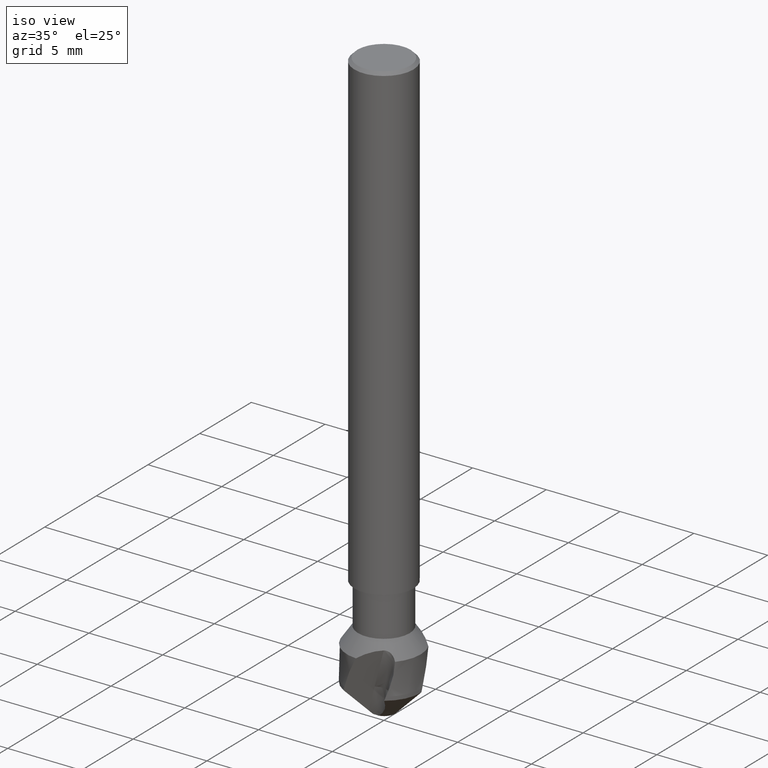
[diagram: clean part render]
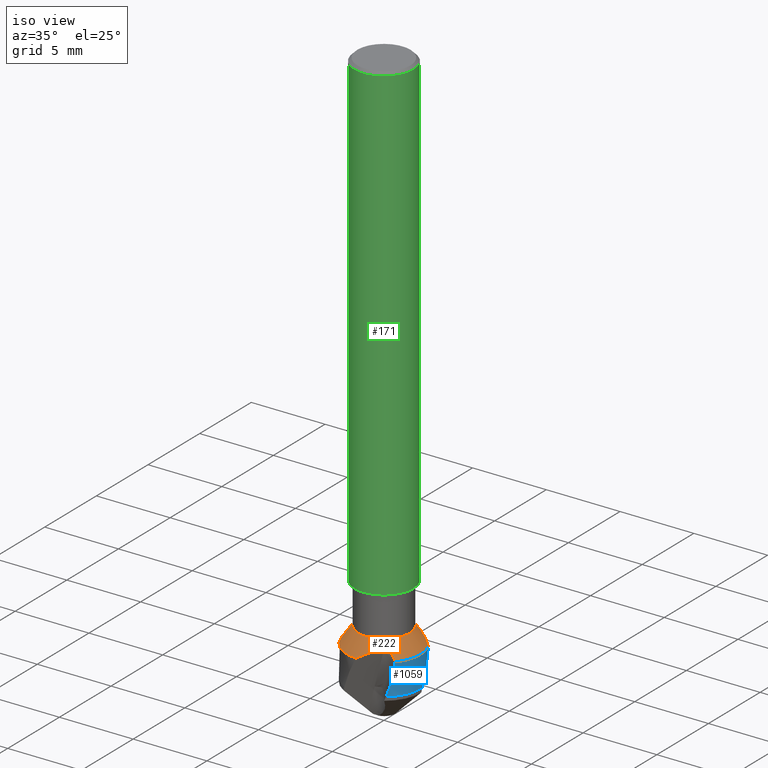
[diagram: same view with three faces highlighted in distinct colors, each labeled with its STEP entity id]
A machine part, iso view with three faces highlighted in distinct colors.
Their STEP definitions:

[orange] entity #222 — the highlighted face is a freeform B-spline surface patch.
#75 = VERTEX_POINT('', #76);
#76 = CARTESIAN_POINT('', (-1.75, 2.23804202544179E-15, -34.8));
#90 = EDGE_CURVE('', #75, #75, #91, .T.);
#91 = CIRCLE('', #92, 1.75);
#92 = AXIS2_PLACEMENT_3D('', #93, #94, #95);
#93 = CARTESIAN_POINT('', (1.30479101091582E-31, 2.13088543051639E-15, -34.8));
#94 = DIRECTION('', (3.74939945665464E-33, 6.12323399573677E-17, -1.));
#95 = DIRECTION('', (-1., 6.12323399573677E-17, 0.));
#222 = ADVANCED_FACE('', (#223), #512, .T.);
#223 = FACE_OUTER_BOUND('', #224, .T.);
#224 = EDGE_LOOP('', (#225, #260, #311, #320, #350, #401, #410, #437, #443, #444, #445, #454, #505));
#225 = ORIENTED_EDGE('', *, *, #226, .F.);
#226 = EDGE_CURVE('', #227, #229, #231, .T.);
#227 = VERTEX_POINT('', #228);
#228 = CARTESIAN_POINT('', (1.20760205193936, -1.73999720891473, -35.3397226009154));
#229 = VERTEX_POINT('', #230);
#230 = CARTESIAN_POINT('', (-0.158107779370651, -2.49499537676976, -35.9));
#231 = B_SPLINE_CURVE_WITH_KNOTS('', 3, (#232, #233, #234, #235, #236, #237, #238, #239, #240, #241, #242, #243, #244, #245, #246, #247, #248, #249, #250, #251, #252, #253, #254, #255, #256, #257, #258, #259), .UNSPECIFIED., .F., .U., (4, 3, 3, 3, 3, 3, 3, 3, 3, 4), (0., 0.196740486609931, 0.393544693247827, 0.59041191928206, 0.787336911623722, 0.984311707737441, 1.27977244174439, 1.47683359146671, 1.51581393571768, 1.6823107857256), .UNSPECIFIED.);
#232 = CARTESIAN_POINT('', (1.20760205193936, -1.73999720891473, -35.3397226009154));
#233 = CARTESIAN_POINT('', (1.15450244394694, -1.77843594208436, -35.3416339088387));
#234 = CARTESIAN_POINT('', (1.10078804903441, -1.81599819537307, -35.3464583896103));
#235 = CARTESIAN_POINT('', (1.04681979878399, -1.85246775017193, -35.3540844772241));
#236 = CARTESIAN_POINT('', (0.992834069373713, -1.88894911667815, -35.3617130347642));
#237 = CARTESIAN_POINT('', (0.938484171276018, -1.9244125748852, -35.3721582514227));
#238 = CARTESIAN_POINT('', (0.884105119045262, -1.95871182789647, -35.3851975724793));
#239 = CARTESIAN_POINT('', (0.82970865389888, -1.99302206399726, -35.3982410689047));
#240 = CARTESIAN_POINT('', (0.775183308438032, -2.02623164631097, -35.4139011612502));
#241 = CARTESIAN_POINT('', (0.720808809527349, -2.05826665254427, -35.4318865098584));
#242 = CARTESIAN_POINT('', (0.666418355629724, -2.09031105873741, -35.4498771358669));
#243 = CARTESIAN_POINT('', (0.612093579295941, -2.12123177045816, -35.4702196494777));
#244 = CARTESIAN_POINT('', (0.558047523553407, -2.15101581780167, -35.4925973716619));
#245 = CARTESIAN_POINT('', (0.503987799167757, -2.18080739774878, -35.5149807533359));
#246 = CARTESIAN_POINT('', (0.450137343549027, -2.2095011352929, -35.5394269011755));
#247 = CARTESIAN_POINT('', (0.396645734377478, -2.23712750356453, -35.5656268885022));
#248 = CARTESIAN_POINT('', (0.316408717150592, -2.2785668511792, -35.6049266752731));
#249 = CARTESIAN_POINT('', (0.236841490417003, -2.31767779492013, -35.6482353995181));
#250 = CARTESIAN_POINT('', (0.158235387121901, -2.35466563533675, -35.694632079254));
#251 = CARTESIAN_POINT('', (0.105808085258637, -2.37933512782529, -35.7255769121868));
#252 = CARTESIAN_POINT('', (0.0537555239291735, -2.40308529251182, -35.7579259775108));
#253 = CARTESIAN_POINT('', (0.00211990617337289, -2.42598889427352, -35.7914517367246));
#254 = CARTESIAN_POINT('', (-0.0080940510605584, -2.43051941833936, -35.7980834124114));
#255 = CARTESIAN_POINT('', (-0.0182924699728632, -2.43501714215963, -35.8047616774161));
#256 = CARTESIAN_POINT('', (-0.0284751408104747, -2.43948263831192, -35.8114849394093));
#257 = CARTESIAN_POINT('', (-0.0719684103468818, -2.45855612412546, -35.8402020265762));
#258 = CARTESIAN_POINT('', (-0.115182688459137, -2.47704562340189, -35.8697448124174));
#259 = CARTESIAN_POINT('', (-0.158107779370724, -2.49499537676978, -35.9));
#260 = ORIENTED_EDGE('', *, *, #261, .T.);
#261 = EDGE_CURVE('', #227, #262, #264, .T.);
#262 = VERTEX_POINT('', #263);
#263 = CARTESIAN_POINT('', (1.89584933750538, -1.62964882397417, -35.9));
#264 = B_SPLINE_CURVE_WITH_KNOTS('', 3, (#265, #266, #267, #268, #269, #270, #271, #272, #273, #274, #275, #276, #277, #278, #279, #280, #281, #282, #283, #284, #285, #286, #287, #288, #289, #290, #291, #292, #293, #294, #295, #296, #297, #298, #299, #300, #301, #302, #303, #304, #305, #306, #307, #308, #309, #310), .UNSPECIFIED., .F., .U., (4, 3, 3, 3, 3, 3, 3, 3, 3, 3, 3, 3, 3, 3, 3, 4), (0., 0.0587673248027363, 0.117521670315542, 0.17624740857675, 0.234929922297483, 0.293558739150275, 0.352128804713656, 0.410639877144373, 0.498388963642157, 0.585963489136247, 0.673392255171322, 0.760699628909353, 0.786615305294234, 0.803905985207259, 0.936313579003721, 0.974726963901985), .UNSPECIFIED.);
#265 = CARTESIAN_POINT('', (1.20760205193936, -1.73999720891473, -35.3397226009154));
#266 = CARTESIAN_POINT('', (1.22346315894158, -1.72851537537803, -35.3391516840926));
#267 = CARTESIAN_POINT('', (1.23963722866502, -1.71735400770385, -35.3396298202383));
#268 = CARTESIAN_POINT('', (1.25596885315852, -1.70664870681172, -35.3411815086513));
#269 = CARTESIAN_POINT('', (1.27229687066651, -1.69594577028114, -35.34273285436));
#270 = CARTESIAN_POINT('', (1.28883927413807, -1.68566172517704, -35.3453630532016));
#271 = CARTESIAN_POINT('', (1.30542669799013, -1.67592072635504, -35.3490419105688));
#272 = CARTESIAN_POINT('', (1.32200604549305, -1.66618447038571, -35.3527189767154));
#273 = CARTESIAN_POINT('', (1.33868852391849, -1.65695658964325, -35.3574561632552));
#274 = CARTESIAN_POINT('', (1.35530830491747, -1.64833669570935, -35.3631719805618));
#275 = CARTESIAN_POINT('', (1.37191585307924, -1.63972314636923, -35.3688835907937));
#276 = CARTESIAN_POINT('', (1.38851674479303, -1.63168738341844, -35.3755906250786));
#277 = CARTESIAN_POINT('', (1.40496386377334, -1.62429779457151, -35.383174333508));
#278 = CARTESIAN_POINT('', (1.42139593297614, -1.61691496749656, -35.3907511025381));
#279 = CARTESIAN_POINT('', (1.43772548480709, -1.6101537593712, -35.3992252053557));
#280 = CARTESIAN_POINT('', (1.45383243014595, -1.60405208987612, -35.4084589697053));
#281 = CARTESIAN_POINT('', (1.46992323489289, -1.59795653479661, -35.4176834810017));
#282 = CARTESIAN_POINT('', (1.48583631550302, -1.59250184481924, -35.4276904505203));
#283 = CARTESIAN_POINT('', (1.50147967498326, -1.58770122753821, -35.4383394305504));
#284 = CARTESIAN_POINT('', (1.51710727810789, -1.5829054455506, -35.4489776846801));
#285 = CARTESIAN_POINT('', (1.53250325555496, -1.57875042494379, -35.4602813117142));
#286 = CARTESIAN_POINT('', (1.54760000819448, -1.5752320243837, -35.472117817637));
#287 = CARTESIAN_POINT('', (1.57024061617119, -1.56995547718919, -35.4898690318757));
#288 = CARTESIAN_POINT('', (1.59228966511061, -1.56609316441165, -35.5088823310932));
#289 = CARTESIAN_POINT('', (1.61359456789379, -1.56358879159765, -35.5287663427862));
#290 = CARTESIAN_POINT('', (1.63485708840996, -1.56108940078232, -35.5486107988191));
#291 = CARTESIAN_POINT('', (1.65545908803901, -1.55993123947431, -35.569395369113));
#292 = CARTESIAN_POINT('', (1.67530487293432, -1.56003708204758, -35.59080279277));
#293 = CARTESIAN_POINT('', (1.69511762641035, -1.56014274845597, -35.6121745858087));
#294 = CARTESIAN_POINT('', (1.7142377094532, -1.56150750282114, -35.6342319910923));
#295 = CARTESIAN_POINT('', (1.73259861309409, -1.56405018292493, -35.656720252447));
#296 = CARTESIAN_POINT('', (1.75093402315467, -1.5665893325914, -35.6791772895054));
#297 = CARTESIAN_POINT('', (1.76855969741113, -1.57030915439599, -35.7021216709136));
#298 = CARTESIAN_POINT('', (1.78542201455782, -1.57513086493967, -35.7253459346143));
#299 = CARTESIAN_POINT('', (1.79042730031506, -1.57656210590732, -35.7322396536276));
#300 = CARTESIAN_POINT('', (1.79536763597393, -1.57809097731168, -35.7391612807423));
#301 = CARTESIAN_POINT('', (1.80024170804049, -1.57971547565111, -35.7461059999367));
#302 = CARTESIAN_POINT('', (1.80349364014228, -1.58079932468476, -35.7507394470786));
#303 = CARTESIAN_POINT('', (1.80671641982249, -1.58192585358781, -35.7553836656822));
#304 = CARTESIAN_POINT('', (1.80990966147053, -1.58309447318476, -35.7600372835816));
#305 = CARTESIAN_POINT('', (1.83436268732921, -1.59204346244799, -35.7956734963631));
#306 = CARTESIAN_POINT('', (1.85714423172993, -1.6034889715928, -35.8319460025261));
#307 = CARTESIAN_POINT('', (1.878081207442, -1.61717219559485, -35.8683106415704));
#308 = CARTESIAN_POINT('', (1.88415533116536, -1.62114189956099, -35.8788605566942));
#309 = CARTESIAN_POINT('', (1.89007949199095, -1.62530286446285, -35.8894275945797));
#310 = CARTESIAN_POINT('', (1.89584933750538, -1.62964882397417, -35.9));
#311 = ORIENTED_EDGE('', *, *, #312, .F.);
#312 = EDGE_CURVE('', #313, #262, #315, .T.);
#313 = VERTEX_POINT('', #314);
#314 = CARTESIAN_POINT('', (2.23978326829265, 1.11057233491398, -35.9));
#315 = CIRCLE('', #316, 2.5);
#316 = AXIS2_PLACEMENT_3D('', #317, #318, #319);
#317 = CARTESIAN_POINT('', (1.34603440493902E-31, 2.1982410044695E-15, -35.9));
#318 = DIRECTION('', (3.74939945665464E-33, 6.12323399573677E-17, -1.));
#319 = DIRECTION('', (-1., 6.12323399573677E-17, 0.));
#320 = ORIENTED_EDGE('', *, *, #321, .F.);
#321 = EDGE_CURVE('', #322, #313, #324, .T.);
#322 = VERTEX_POINT('', #323);
#323 = CARTESIAN_POINT('', (0.903080759464498, 1.91581265909907, -35.3397226009154));
#324 = B_SPLINE_CURVE_WITH_KNOTS('', 3, (#325, #326, #327, #328, #329, #330, #331, #332, #333, #334, #335, #336, #337, #338, #339, #340, #341, #342, #343, #344, #345, #346, #347, #348, #349), .UNSPECIFIED., .F., .U., (4, 3, 3, 3, 3, 3, 3, 3, 4), (0., 0.197948059204742, 0.395913672137358, 0.593862320245509, 0.791767773202384, 0.989614001723729, 1.28677544332204, 1.58371548869754, 1.6822701160521), .UNSPECIFIED.);
#325 = CARTESIAN_POINT('', (0.903080759464499, 1.91581265909907, -35.3397226009154));
#326 = CARTESIAN_POINT('', (0.963286766720456, 1.88888212782336, -35.3416456402475));
#327 = CARTESIAN_POINT('', (1.02303588032795, 1.86096876812933, -35.3465179048319));
#328 = CARTESIAN_POINT('', (1.08195376071243, 1.83228090915052, -35.3542253702377));
#329 = CARTESIAN_POINT('', (1.14087686584346, 1.80359050617673, -35.3619335191296));
#330 = CARTESIAN_POINT('', (1.1990911061575, 1.77406682785362, -35.3724908629229));
#331 = CARTESIAN_POINT('', (1.2562978387912, 1.74393070629215, -35.3856700517838));
#332 = CARTESIAN_POINT('', (1.31349966904734, 1.71379716727016, -35.3988481112433));
#333 = CARTESIAN_POINT('', (1.36980126310625, 1.68299625924515, -35.414668774043));
#334 = CARTESIAN_POINT('', (1.42499673104997, 1.65173634735769, -35.4328352001369));
#335 = CARTESIAN_POINT('', (1.48018015457403, 1.62048325681826, -35.4509976620636));
#336 = CARTESIAN_POINT('', (1.53434624358651, 1.58872271052836, -35.4715305297084));
#337 = CARTESIAN_POINT('', (1.58737707606598, 1.55663474737828, -35.4941122557442));
#338 = CARTESIAN_POINT('', (1.64039203873958, 1.52455638675039, -35.5166872240582));
#339 = CARTESIAN_POINT('', (1.69234190036663, 1.49210985511345, -35.5413366914709));
#340 = CARTESIAN_POINT('', (1.74317909038623, 1.45944101370345, -35.5677481207029));
#341 = CARTESIAN_POINT('', (1.81953562639875, 1.41037300729618, -35.6074176076772));
#342 = CARTESIAN_POINT('', (1.893515349503, 1.360720090537, -35.6511255579785));
#343 = CARTESIAN_POINT('', (1.96515465384402, 1.31084027643543, -35.6979387212998));
#344 = CARTESIAN_POINT('', (2.03674058426378, 1.26099762463317, -35.7447170070897));
#345 = CARTESIAN_POINT('', (2.1061091000396, 1.2108477637219, -35.7946675738061));
#346 = CARTESIAN_POINT('', (2.17341810723261, 1.16061960636241, -35.8470476573603));
#347 = CARTESIAN_POINT('', (2.19575801801536, 1.14394884265652, -35.8644326470101));
#348 = CARTESIAN_POINT('', (2.21787739334309, 1.12726439660832, -35.8820910201148));
#349 = CARTESIAN_POINT('', (2.23978326829266, 1.11057233491396, -35.9));
#350 = ORIENTED_EDGE('', *, *, #351, .T.);
#351 = EDGE_CURVE('', #322, #352, #354, .T.);
#352 = VERTEX_POINT('', #353);
#353 = CARTESIAN_POINT('', (0.463392612056944, 2.45667810001454, -35.9));
#354 = B_SPLINE_CURVE_WITH_KNOTS('', 3, (#355, #356, #357, #358, #359, #360, #361, #362, #363, #364, #365, #366, #367, #368, #369, #370, #371, #372, #373, #374, #375, #376, #377, #378, #379, #380, #381, #382, #383, #384, #385, #386, #387, #388, #389, #390, #391, #392, #393, #394, #395, #396, #397, #398, #399, #400), .UNSPECIFIED., .F., .U., (4, 3, 3, 3, 3, 3, 3, 3, 3, 3, 3, 3, 3, 3, 3, 4), (0., 0.0586610208564477, 0.117310282433575, 0.175937811751082, 0.234533638264439, 0.293090007362618, 0.351602484326495, 0.410069810543747, 0.46849305129856, 0.556072498474775, 0.643520183226993, 0.730853237217085, 0.789083442794082, 0.80637909232842, 0.93877376594202, 0.974753678392516), .UNSPECIFIED.);
#355 = CARTESIAN_POINT('', (0.903080759464498, 1.91581265909907, -35.3397226009154));
#356 = CARTESIAN_POINT('', (0.885238978840258, 1.92379340143717, -35.3391527168215));
#357 = CARTESIAN_POINT('', (0.867517868166555, 1.93220381745964, -35.339628073075));
#358 = CARTESIAN_POINT('', (0.850111502266289, 1.94097750082241, -35.3411730838799));
#359 = CARTESIAN_POINT('', (0.832708625673158, 1.94974942539899, -35.3427177849694));
#360 = CARTESIAN_POINT('', (0.815560215719461, 1.95891509285258, -35.3453374428884));
#361 = CARTESIAN_POINT('', (0.798857483896465, 1.96839039646292, -35.3490021730408));
#362 = CARTESIAN_POINT('', (0.78216094120688, 1.97786218903573, -35.3526655452415));
#363 = CARTESIAN_POINT('', (0.765851381120537, 1.98767650896533, -35.3573856156926));
#364 = CARTESIAN_POINT('', (0.750097273793352, 1.99774003923945, -35.3630815044691));
#365 = CARTESIAN_POINT('', (0.734351685491018, 2.00779812766512, -35.3687743131968));
#366 = CARTESIAN_POINT('', (0.719107801836755, 2.01813880867216, -35.3754600155762));
#367 = CARTESIAN_POINT('', (0.704498055099719, 2.02866925371806, -35.3830205573816));
#368 = CARTESIAN_POINT('', (0.689898146313214, 2.03919260774457, -35.390576008049));
#369 = CARTESIAN_POINT('', (0.675885914309031, 2.04993781889868, -35.3990272825875));
#370 = CARTESIAN_POINT('', (0.662554181325104, 2.06082008473293, -35.4082372954695));
#371 = CARTESIAN_POINT('', (0.64923244141663, 2.07169419354036, -35.4174404047964));
#372 = CARTESIAN_POINT('', (0.636552986383807, 2.08273489042923, -35.4274253523423));
#373 = CARTESIAN_POINT('', (0.624573350018204, 2.09386921742897, -35.4380520777381));
#374 = CARTESIAN_POINT('', (0.612602957655834, 2.10499495270258, -35.4486706030951));
#375 = CARTESIAN_POINT('', (0.601302145130298, 2.11624066411617, -35.4599545164651));
#376 = CARTESIAN_POINT('', (0.590701270526215, 2.12754576447576, -35.4717715179009));
#377 = CARTESIAN_POINT('', (0.580108389180752, 2.13884234057729, -35.4835796090955));
#378 = CARTESIAN_POINT('', (0.570192159279552, 2.15022138648258, -35.4959437676796));
#379 = CARTESIAN_POINT('', (0.560964192227973, 2.16163323303107, -35.5087448288436));
#380 = CARTESIAN_POINT('', (0.547130994300295, 2.17874017881266, -35.5279342788901));
#381 = CARTESIAN_POINT('', (0.534802224287765, 2.19597458664453, -35.5481645990374));
#382 = CARTESIAN_POINT('', (0.523970577274131, 2.21320390044964, -35.5690946281999));
#383 = CARTESIAN_POINT('', (0.513155226367773, 2.23040729292019, -35.5899931683377));
#384 = CARTESIAN_POINT('', (0.503795766541867, 2.24766165191017, -35.6116567824493));
#385 = CARTESIAN_POINT('', (0.495859223577764, 2.2648623920961, -35.6338113154041));
#386 = CARTESIAN_POINT('', (0.487933084227791, 2.28204058469872, -35.6559368070985));
#387 = CARTESIAN_POINT('', (0.481403903221361, 2.29921186017293, -35.6786118628831));
#388 = CARTESIAN_POINT('', (0.476230881951162, 2.31628716773396, -35.7016145821014));
#389 = CARTESIAN_POINT('', (0.472781717193314, 2.32767230342018, -35.7169518800398));
#390 = CARTESIAN_POINT('', (0.469930430041385, 2.33902989296109, -35.7324557031145));
#391 = CARTESIAN_POINT('', (0.46766473736576, 2.35033543864883, -35.7480698644296));
#392 = CARTESIAN_POINT('', (0.466991776896501, 2.35369343393791, -35.7527076131581));
#393 = CARTESIAN_POINT('', (0.466370331727917, 2.35704747043463, -35.7573559974481));
#394 = CARTESIAN_POINT('', (0.465800084510239, 2.36039691968849, -35.7620136502079));
#395 = CARTESIAN_POINT('', (0.46143495823304, 2.38603627135716, -35.7976670331993));
#396 = CARTESIAN_POINT('', (0.460064285680552, 2.41147333162623, -35.8339485125164));
#397 = CARTESIAN_POINT('', (0.461550680584423, 2.43642887755003, -35.8703161596491));
#398 = CARTESIAN_POINT('', (0.461954627035201, 2.44321086003456, -35.8801995237162));
#399 = CARTESIAN_POINT('', (0.462569494375467, 2.44996249220208, -35.8900973522011));
#400 = CARTESIAN_POINT('', (0.46339261205638, 2.45667810001465, -35.9));
#401 = ORIENTED_EDGE('', *, *, #402, .F.);
#402 = EDGE_CURVE('', #403, #352, #405, .T.);
#403 = VERTEX_POINT('', #404);
#404 = CARTESIAN_POINT('', (-2.08167548892202, 1.3844230418558, -35.9));
#405 = CIRCLE('', #406, 2.5);
#406 = AXIS2_PLACEMENT_3D('', #407, #408, #409);
#407 = CARTESIAN_POINT('', (1.34603440493902E-31, 2.1982410044695E-15, -35.9));
#408 = DIRECTION('', (3.74939945665464E-33, 6.12323399573677E-17, -1.));
#409 = DIRECTION('', (-1., 6.12323399573677E-17, 0.));
#410 = ORIENTED_EDGE('', *, *, #411, .T.);
#411 = EDGE_CURVE('', #403, #412, #414, .T.);
#412 = VERTEX_POINT('', #413);
#413 = CARTESIAN_POINT('', (-2.12627027837042, 2.29487380245766E-15, -35.3518630749433));
#414 = B_SPLINE_CURVE_WITH_KNOTS('', 3, (#415, #416, #417, #418, #419, #420, #421, #422, #423, #424, #425, #426, #427, #428, #429, #430, #431, #432, #433, #434, #435, #436), .UNSPECIFIED., .F., .U., (4, 3, 3, 3, 3, 3, 3, 4), (0., 0.293287903994211, 0.586124322478058, 0.878441111727879, 1.07379095687651, 1.26897554305017, 1.4640176326665, 1.50532896819491), .UNSPECIFIED.);
#415 = CARTESIAN_POINT('', (-2.08167548892202, 1.3844230418558, -35.9));
#416 = CARTESIAN_POINT('', (-2.09209947829118, 1.30313038317057, -35.8467048142314));
#417 = CARTESIAN_POINT('', (-2.10152679121449, 1.22019869609975, -35.7955988668347));
#418 = CARTESIAN_POINT('', (-2.10970856146781, 1.13557304063512, -35.7473382223167));
#419 = CARTESIAN_POINT('', (-2.1178777367567, 1.05107765735945, -35.699151869924));
#420 = CARTESIAN_POINT('', (-2.12481528750139, 0.964775009662034, -35.6537381924927));
#421 = CARTESIAN_POINT('', (-2.13022223808732, 0.876736473038019, -35.6119277783452));
#422 = CARTESIAN_POINT('', (-2.13561959420544, 0.788854158094311, -35.5701915554941));
#423 = CARTESIAN_POINT('', (-2.13949935751786, 0.699062583476043, -35.5319698789151));
#424 = CARTESIAN_POINT('', (-2.14153247271608, 0.607667883503436, -35.4982471819541));
#425 = CARTESIAN_POINT('', (-2.14289116559226, 0.54659051421215, -35.4757109340492));
#426 = CARTESIAN_POINT('', (-2.14342659609574, 0.484712054228181, -35.4551537160274));
#427 = CARTESIAN_POINT('', (-2.14304476797059, 0.422211773108376, -35.4368850920305));
#428 = CARTESIAN_POINT('', (-2.14266326285836, 0.359764364988729, -35.4186319226355));
#429 = CARTESIAN_POINT('', (-2.14136437886947, 0.296600923485017, -35.4026385779888));
#430 = CARTESIAN_POINT('', (-2.13907172889301, 0.232985164222774, -35.3891930787586));
#431 = CARTESIAN_POINT('', (-2.13678075268974, 0.169415848313791, -35.3757573955564));
#432 = CARTESIAN_POINT('', (-2.13349222166386, 0.105281294371037, -35.3648449323964));
#433 = CARTESIAN_POINT('', (-2.12916217072975, 0.0409273410870953, -35.3566813893024));
#434 = CARTESIAN_POINT('', (-2.12824503439602, 0.027296704941216, -35.3549522914009));
#435 = CARTESIAN_POINT('', (-2.12728112746613, 0.0136530328107332, -35.353345653617));
#436 = CARTESIAN_POINT('', (-2.12627027837042, 2.07282919753263E-15, -35.3518630749433));
#437 = ORIENTED_EDGE('', *, *, #438, .F.);
#438 = EDGE_CURVE('', #75, #412, #439, .T.);
#439 = LINE('', #440, #441);
#440 = CARTESIAN_POINT('', (-1.75, 2.23804202544179E-15, -34.8));
#441 = VECTOR('', #442, 0.667931265828169);
#442 = DIRECTION('', (-0.376270278370423, 5.68317770158771E-17, -0.551863074943292));
#443 = ORIENTED_EDGE('', *, *, #90, .T.);
#444 = ORIENTED_EDGE('', *, *, #438, .T.);
#445 = ORIENTED_EDGE('', *, *, #446, .F.);
#446 = EDGE_CURVE('', #447, #412, #449, .T.);
#447 = VERTEX_POINT('', #448);
#448 = CARTESIAN_POINT('', (-2.11068281140386, -0.175815450184334, -35.3397226009154));
#449 = B_SPLINE_CURVE_WITH_KNOTS('', 3, (#450, #451, #452, #453), .UNSPECIFIED., .F., .U., (4, 4), (0., 0.176922109301172), .UNSPECIFIED.);
#450 = CARTESIAN_POINT('', (-2.11068281140386, -0.175815450184333, -35.3397226009154));
#451 = CARTESIAN_POINT('', (-2.1167430714709, -0.117178806063825, -35.3414413759126));
#452 = CARTESIAN_POINT('', (-2.12194116259842, -0.0584712000310837, -35.3455137051444));
#453 = CARTESIAN_POINT('', (-2.12627027837042, 2.07282919753263E-15, -35.3518630749433));
#454 = ORIENTED_EDGE('', *, *, #455, .T.);
#455 = EDGE_CURVE('', #447, #456, #458, .T.);
#456 = VERTEX_POINT('', #457);
#457 = CARTESIAN_POINT('', (-2.35924194956176, -0.827029276040468, -35.9));
#458 = B_SPLINE_CURVE_WITH_KNOTS('', 3, (#459, #460, #461, #462, #463, #464, #465, #466, #467, #468, #469, #470, #471, #472, #473, #474, #475, #476, #477, #478, #479, #480, #481, #482, #483, #484, #485, #486, #487, #488, #489, #490, #491, #492, #493, #494, #495, #496, #497, #498, #499, #500, #501, #502, #503, #504), .UNSPECIFIED., .F., .U., (4, 3, 3, 3, 3, 3, 3, 3, 3, 3, 3, 3, 3, 3, 3, 4), (0., 0.058879694350919, 0.11774426706121, 0.176572184424059, 0.235344134547744, 0.294047071843212, 0.352675578941784, 0.41123070641593, 0.499051725561237, 0.586667048398048, 0.674116586845117, 0.761432999410759, 0.787348929679776, 0.804641089662375, 0.937050675130552, 0.974726321529), .UNSPECIFIED.);
#459 = CARTESIAN_POINT('', (-2.11068281140386, -0.175815450184334, -35.3397226009154));
#460 = CARTESIAN_POINT('', (-2.10866595629263, -0.195329730774908, -35.3391505924373));
#461 = CARTESIAN_POINT('', (-2.1070847764308, -0.214955307213243, -35.3396316747694));
#462 = CARTESIAN_POINT('', (-2.10597921593223, -0.234488613158563, -35.3411904371108));
#463 = CARTESIAN_POINT('', (-2.10487393936666, -0.254016902507991, -35.3427487991267));
#464 = CARTESIAN_POINT('', (-2.1042404545707, -0.273521113490557, -35.3453901090032));
#465 = CARTESIAN_POINT('', (-2.10410167435792, -0.292791330835254, -35.3490838438224));
#466 = CARTESIAN_POINT('', (-2.10396298056447, -0.312049548491862, -35.3527752785292));
#467 = CARTESIAN_POINT('', (-2.10431789333733, -0.331141841128459, -35.3575303970263));
#468 = CARTESIAN_POINT('', (-2.1051696920291, -0.349873896440641, -35.3632670699508));
#469 = CARTESIAN_POINT('', (-2.10602068034336, -0.36858813059806, -35.3689982851647));
#470 = CARTESIAN_POINT('', (-2.10737023099466, -0.387006179906548, -35.3757275285254));
#471 = CARTESIAN_POINT('', (-2.10920384714639, -0.404965935449109, -35.3833353272673));
#472 = CARTESIAN_POINT('', (-2.11103531017854, -0.422904601789739, -35.3909341925689));
#473 = CARTESIAN_POINT('', (-2.11335498290859, -0.440442045366909, -35.3994319186422));
#474 = CARTESIAN_POINT('', (-2.11613547890568, -0.457455136380361, -35.4086902304197));
#475 = CARTESIAN_POINT('', (-2.11891244947672, -0.474446656280471, -35.4179368034665));
#476 = CARTESIAN_POINT('', (-2.12215630031317, -0.490962389819739, -35.4279664363422));
#477 = CARTESIAN_POINT('', (-2.12583232388724, -0.506916099012785, -35.4386382890794));
#478 = CARTESIAN_POINT('', (-2.12950374653861, -0.52284984049308, -35.4492967848921));
#479 = CARTESIAN_POINT('', (-2.1336146769684, -0.538261500674238, -35.4606206042098));
#480 = CARTESIAN_POINT('', (-2.13812763312839, -0.553094728515166, -35.4724770612418));
#481 = CARTESIAN_POINT('', (-2.14489616777984, -0.57534161350026, -35.4902593833871));
#482 = CARTESIAN_POINT('', (-2.15259456731481, -0.596366698876683, -35.5093035183216));
#483 = CARTESIAN_POINT('', (-2.16109752597235, -0.616066314310593, -35.5292176534917));
#484 = CARTESIAN_POINT('', (-2.16958056881447, -0.635719788875118, -35.5490851453395));
#485 = CARTESIAN_POINT('', (-2.17889499087438, -0.65412944404937, -35.5698914924946));
#486 = CARTESIAN_POINT('', (-2.18892599187649, -0.671251269880847, -35.5913195210959));
#487 = CARTESIAN_POINT('', (-2.19893801237011, -0.688340698052247, -35.6127070039053));
#488 = CARTESIAN_POINT('', (-2.20969381909468, -0.704200277534722, -35.6347786450962));
#489 = CARTESIAN_POINT('', (-2.22108987398845, -0.718813113312614, -35.6572799449231));
#490 = CARTESIAN_POINT('', (-2.23246858047901, -0.733403703728465, -35.6797469906484));
#491 = CARTESIAN_POINT('', (-2.24451446894875, -0.746789243900801, -35.7027000440204));
#492 = CARTESIAN_POINT('', (-2.25713252422448, -0.758962725809132, -35.7259319069029));
#493 = CARTESIAN_POINT('', (-2.26087762358264, -0.762575873658402, -35.7328272352929));
#494 = CARTESIAN_POINT('', (-2.264674751723, -0.766083970893751, -35.7397503700579));
#495 = CARTESIAN_POINT('', (-2.26852151766197, -0.769486881949737, -35.746696501956));
#496 = CARTESIAN_POINT('', (-2.27108823594458, -0.771757442248976, -35.7513312429355));
#497 = CARTESIAN_POINT('', (-2.27367732286348, -0.773981414085826, -35.7559767144199));
#498 = CARTESIAN_POINT('', (-2.27628807541146, -0.776158758092065, -35.7606315457782));
#499 = CARTESIAN_POINT('', (-2.2962791385861, -0.792831123925939, -35.7962745360813));
#500 = CARTESIAN_POINT('', (-2.31759534516215, -0.806807864641257, -35.8325514086799));
#501 = CARTESIAN_POINT('', (-2.33992602977453, -0.818068441214964, -35.8689186066345));
#502 = CARTESIAN_POINT('', (-2.3462799729148, -0.821272510616236, -35.8792664805123));
#503 = CARTESIAN_POINT('', (-2.35272100411615, -0.824259655796435, -35.8896306402248));
#504 = CARTESIAN_POINT('', (-2.35924194956176, -0.827029276040468, -35.9));
#505 = ORIENTED_EDGE('', *, *, #506, .F.);
#506 = EDGE_CURVE('', #229, #456, #507, .T.);
#507 = CIRCLE('', #508, 2.5);
#508 = AXIS2_PLACEMENT_3D('', #509, #510, #511);
#509 = CARTESIAN_POINT('', (1.34603440493902E-31, 2.1982410044695E-15, -35.9));
#510 = DIRECTION('', (3.74939945665464E-33, 6.12323399573677E-17, -1.));
#511 = DIRECTION('', (-1., 6.12323399573677E-17, 0.));
#512 = (
   BOUNDED_SURFACE ()
   B_SPLINE_SURFACE (2, 1, ((#513, #514), (#515, #516), (#517, #518), (#519, #520), (#521, #522), (#523, #524), (#525, #526), (#527, #528), (#529, #530)), .UNSPECIFIED., .T., .F., .U.)
   B_SPLINE_SURFACE_WITH_KNOTS ((3, 2, 2, 2, 3), (2, 2), (0., 0.25, 0.5, 0.75, 1.), (0., 1.), .UNSPECIFIED.)
   GEOMETRIC_REPRESENTATION_ITEM ()
   RATIONAL_B_SPLINE_SURFACE (((1., 1.), (0.707106781186548, 0.707106781186548), (1., 1.), (0.707106781186548, 0.707106781186548), (1., 1.), (0.707106781186548, 0.707106781186548), (1., 1.), (0.707106781186548, 0.707106781186548), (1., 1.)))
   REPRESENTATION_ITEM ('')
   SURFACE ()
);
#513 = CARTESIAN_POINT('', (-1.75, 2.23804202544179E-15, -34.8));
#514 = CARTESIAN_POINT('', (-2.5, 2.35132185436292E-15, -35.9));
#515 = CARTESIAN_POINT('', (-1.75, 1.75, -34.8));
#516 = CARTESIAN_POINT('', (-2.5, 2.5, -35.9));
#517 = CARTESIAN_POINT('', (1.35585468084861E-31, 1.75, -34.8));
#518 = CARTESIAN_POINT('', (1.23259516440783E-31, 2.5, -35.9));
#519 = CARTESIAN_POINT('', (1.75, 1.75, -34.8));
#520 = CARTESIAN_POINT('', (2.5, 2.5, -35.9));
#521 = CARTESIAN_POINT('', (1.75, 2.23804202544179E-15, -34.8));
#522 = CARTESIAN_POINT('', (2.5, 2.35132185436292E-15, -35.9));
#523 = CARTESIAN_POINT('', (1.75, -1.75, -34.8));
#524 = CARTESIAN_POINT('', (2.5, -2.5, -35.9));
#525 = CARTESIAN_POINT('', (2.14313189850787E-16, -1.75, -34.8));
#526 = CARTESIAN_POINT('', (3.06161699786838E-16, -2.5, -35.9));
#527 = CARTESIAN_POINT('', (-1.75, -1.75, -34.8));
#528 = CARTESIAN_POINT('', (-2.5, -2.5, -35.9));
#529 = CARTESIAN_POINT('', (-1.75, 2.23804202544179E-15, -34.8));
#530 = CARTESIAN_POINT('', (-2.5, 2.35132185436292E-15, -35.9));

[blue] entity #1059 — the highlighted face is a freeform B-spline surface patch.
#262 = VERTEX_POINT('', #263);
#263 = CARTESIAN_POINT('', (1.89584933750538, -1.62964882397417, -35.9));
#312 = EDGE_CURVE('', #313, #262, #315, .T.);
#313 = VERTEX_POINT('', #314);
#314 = CARTESIAN_POINT('', (2.23978326829265, 1.11057233491398, -35.9));
#315 = CIRCLE('', #316, 2.5);
#316 = AXIS2_PLACEMENT_3D('', #317, #318, #319);
#317 = CARTESIAN_POINT('', (1.34603440493902E-31, 2.1982410044695E-15, -35.9));
#318 = DIRECTION('', (3.74939945665464E-33, 6.12323399573677E-17, -1.));
#319 = DIRECTION('', (-1., 6.12323399573677E-17, 0.));
#756 = VERTEX_POINT('', #757);
#757 = CARTESIAN_POINT('', (2.49497012970105, 0.158505684123924, -38.));
#765 = EDGE_CURVE('', #756, #313, #766, .T.);
#766 = B_SPLINE_CURVE_WITH_KNOTS('', 3, (#767, #768, #769, #770, #771, #772, #773, #774, #775, #776, #777, #778, #779, #780, #781, #782, #783, #784, #785), .UNSPECIFIED., .F., .U., (4, 3, 3, 3, 3, 3, 4), (0.270055069599067, 0.443796648003655, 0.887591491537142, 1.3313894045272, 1.77519664036352, 2.21902233958598, 2.59397223129909), .UNSPECIFIED.);
#767 = CARTESIAN_POINT('', (2.49497012970105, 0.158505684123924, -38.));
#768 = CARTESIAN_POINT('', (2.49356916043078, 0.180557741760165, -37.9464672141803));
#769 = CARTESIAN_POINT('', (2.49186764268537, 0.202720997956101, -37.8929828434379));
#770 = CARTESIAN_POINT('', (2.48985492714554, 0.224994314970537, -37.8395612799655));
#771 = CARTESIAN_POINT('', (2.48471376988038, 0.281887911369062, -37.7031045111239));
#772 = CARTESIAN_POINT('', (2.47754460671139, 0.339517762700951, -37.5670095766173));
#773 = CARTESIAN_POINT('', (2.46812863137571, 0.397920920514944, -37.4314213280937));
#774 = CARTESIAN_POINT('', (2.45871259091551, 0.456324482267738, -37.2958321417893));
#775 = CARTESIAN_POINT('', (2.44704867769177, 0.515517213756099, -37.1607111896794));
#776 = CARTESIAN_POINT('', (2.43284728287474, 0.575546781946541, -37.0262536253175));
#777 = CARTESIAN_POINT('', (2.41864558972954, 0.63557761117589, -36.8917932364104));
#778 = CARTESIAN_POINT('', (2.40190376045612, 0.69646637912008, -36.757946434037));
#779 = CARTESIAN_POINT('', (2.38223049032932, 0.758272965986287, -36.6249881962566));
#780 = CARTESIAN_POINT('', (2.36255640174994, 0.820082124146487, -36.4920244271125));
#781 = CARTESIAN_POINT('', (2.33994527342497, 0.88283880365171, -36.3598811444991));
#782 = CARTESIAN_POINT('', (2.31385373148742, 0.94661550234598, -36.2289667837823));
#783 = CARTESIAN_POINT('', (2.29181124759961, 1.00049491111192, -36.1183685794411));
#784 = CARTESIAN_POINT('', (2.26727321618258, 1.05513107873063, -36.0085881875078));
#785 = CARTESIAN_POINT('', (2.23978326829266, 1.11057233491396, -35.9));
#971 = VERTEX_POINT('', #972);
#972 = CARTESIAN_POINT('', (1.68097045467306, -1.85049677938553, -37.4382753769953));
#978 = EDGE_CURVE('', #971, #262, #979, .T.);
#979 = B_SPLINE_CURVE_WITH_KNOTS('', 3, (#980, #981, #982, #983, #984, #985, #986, #987, #988, #989, #990, #991, #992, #993, #994, #995, #996, #997, #998, #999, #1000, #1001), .UNSPECIFIED., .F., .U., (4, 3, 3, 3, 3, 3, 3, 4), (0., 0.197310790096899, 0.394544080081815, 0.591717460813025, 0.788842649247587, 1.0844925183376, 1.38002552832735, 1.57529607883682), .UNSPECIFIED.);
#980 = CARTESIAN_POINT('', (1.68097045467306, -1.85049677938553, -37.4382753769953));
#981 = CARTESIAN_POINT('', (1.69834208459242, -1.83471658621294, -37.3768348405347));
#982 = CARTESIAN_POINT('', (1.71440539617047, -1.81968082755455, -37.314815100322));
#983 = CARTESIAN_POINT('', (1.7292789623919, -1.80543464856216, -37.252352703993));
#984 = CARTESIAN_POINT('', (1.74414668654536, -1.79119406521139, -37.1899148417643));
#985 = CARTESIAN_POINT('', (1.75783324202107, -1.77773480889867, -37.1270018519021));
#986 = CARTESIAN_POINT('', (1.77043866326287, -1.76509119867048, -37.0637280615061));
#987 = CARTESIAN_POINT('', (1.78304025563085, -1.75245142891594, -37.000473490409));
#988 = CARTESIAN_POINT('', (1.79456708795847, -1.74062081876406, -36.9368291872658));
#989 = CARTESIAN_POINT('', (1.80510203962948, -1.72962615224374, -36.8728929942627));
#990 = CARTESIAN_POINT('', (1.81563441639148, -1.71863417299402, -36.8089724282777));
#991 = CARTESIAN_POINT('', (1.82517972549146, -1.70847300011547, -36.7447336357813));
#992 = CARTESIAN_POINT('', (1.83380432199802, -1.69916500335352, -36.6802621625911));
#993 = CARTESIAN_POINT('', (1.84673955796847, -1.68520479844002, -36.5835673527595));
#994 = CARTESIAN_POINT('', (1.85761644698733, -1.67315362365319, -36.4862820994601));
#995 = CARTESIAN_POINT('', (1.86658877703715, -1.66308338258757, -36.3886594512806));
#996 = CARTESIAN_POINT('', (1.87555756066763, -1.6530171219036, -36.2910753896051));
#997 = CARTESIAN_POINT('', (1.88263140087826, -1.64492033618439, -36.1930749729424));
#998 = CARTESIAN_POINT('', (1.88787189245659, -1.63888368033621, -36.0948888547217));
#999 = CARTESIAN_POINT('', (1.89133449609426, -1.63489501893169, -36.030013335882));
#1000 = CARTESIAN_POINT('', (1.89399661991386, -1.63180418000352, -35.9650281005903));
#1001 = CARTESIAN_POINT('', (1.89584933750538, -1.62964882397417, -35.9));
#1059 = ADVANCED_FACE('', (#1060), #1084, .T.);
#1060 = FACE_OUTER_BOUND('', #1061, .T.);
#1061 = EDGE_LOOP('', (#1062, #1071, #1072, #1073, #1074));
#1062 = ORIENTED_EDGE('', *, *, #1063, .F.);
#1063 = EDGE_CURVE('', #756, #1064, #1066, .T.);
#1064 = VERTEX_POINT('', #1065);
#1065 = CARTESIAN_POINT('', (1.52029391307646, -1.98461744874488, -38.));
#1066 = CIRCLE('', #1067, 2.5);
#1067 = AXIS2_PLACEMENT_3D('', #1068, #1069, #1070);
#1068 = CARTESIAN_POINT('', (1.42477179352876E-31, 2.32682891837997E-15, -38.));
#1069 = DIRECTION('', (3.74939945665464E-33, 6.12323399573677E-17, -1.));
#1070 = DIRECTION('', (-1., 6.12323399573677E-17, 0.));
#1071 = ORIENTED_EDGE('', *, *, #765, .T.);
#1072 = ORIENTED_EDGE('', *, *, #312, .T.);
#1073 = ORIENTED_EDGE('', *, *, #978, .F.);
#1074 = ORIENTED_EDGE('', *, *, #1075, .T.);
#1075 = EDGE_CURVE('', #971, #1064, #1076, .T.);
#1076 = B_SPLINE_CURVE_WITH_KNOTS('', 3, (#1077, #1078, #1079, #1080, #1081, #1082, #1083), .UNSPECIFIED., .F., .U., (4, 3, 4), (0., 0.443353400838465, 0.599463104004485), .UNSPECIFIED.);
#1077 = CARTESIAN_POINT('', (1.68097045467306, -1.85049677938553, -37.4382753769953));
#1078 = CARTESIAN_POINT('', (1.64193674952662, -1.88595455797695, -37.5763310341429));
#1079 = CARTESIAN_POINT('', (1.60244999280751, -1.91957397341106, -37.714741826345));
#1080 = CARTESIAN_POINT('', (1.56256876461881, -1.9515068167541, -37.8534142094094));
#1081 = CARTESIAN_POINT('', (1.54852613703852, -1.9627507289156, -37.9022423102349));
#1082 = CARTESIAN_POINT('', (1.53443343359238, -1.97378602781398, -37.9511066603668));
#1083 = CARTESIAN_POINT('', (1.52029391307646, -1.98461744874488, -38.));
#1084 = (
   BOUNDED_SURFACE ()
   B_SPLINE_SURFACE (2, 1, ((#1085, #1086), (#1087, #1088), (#1089, #1090), (#1091, #1092), (#1093, #1094), (#1095, #1096), (#1097, #1098), (#1099, #1100), (#1101, #1102)), .UNSPECIFIED., .F., .F., .U.)
   B_SPLINE_SURFACE_WITH_KNOTS ((3, 2, 2, 2, 3), (2, 2), (1.49143637316663, 3.92699081698724, 7.85398163397448, 11.7809724509617, 15.3557267720066), (0., 0.893617021276596), .UNSPECIFIED.)
   GEOMETRIC_REPRESENTATION_ITEM ()
   RATIONAL_B_SPLINE_SURFACE (((0.862018102276774, 0.862018102276774), (0.818345034686557, 0.818345034686557), (1., 1.), (0.707106781186548, 0.707106781186548), (1., 1.), (0.707106781186548, 0.707106781186548), (1., 1.), (0.733378215444515, 0.733378215444515), (0.952170031705974, 0.952170031705974)))
   REPRESENTATION_ITEM ('')
   SURFACE ()
);
#1085 = CARTESIAN_POINT('', (-2.08167548892202, 1.3844230418558, -35.9));
#1086 = CARTESIAN_POINT('', (-2.08167548892202, 1.3844230418558, -38.));
#1087 = CARTESIAN_POINT('', (-1.33975848310763, 2.5, -35.9));
#1088 = CARTESIAN_POINT('', (-1.33975848310763, 2.5, -38.));
#1089 = CARTESIAN_POINT('', (1.23259516440783E-31, 2.5, -35.9));
#1090 = CARTESIAN_POINT('', (1.4791141972894E-31, 2.5, -38.));
#1091 = CARTESIAN_POINT('', (2.5, 2.5, -35.9));
#1092 = CARTESIAN_POINT('', (2.5, 2.5, -38.));
#1093 = CARTESIAN_POINT('', (2.5, 2.35132185436292E-15, -35.9));
#1094 = CARTESIAN_POINT('', (2.5, 2.47990976827339E-15, -38.));
#1095 = CARTESIAN_POINT('', (2.5, -2.5, -35.9));
#1096 = CARTESIAN_POINT('', (2.5, -2.5, -38.));
#1097 = CARTESIAN_POINT('', (3.06161699786838E-16, -2.5, -35.9));
#1098 = CARTESIAN_POINT('', (3.06161699786838E-16, -2.5, -38.));
#1099 = CARTESIAN_POINT('', (-2.19423591655167, -2.5, -35.9));
#1100 = CARTESIAN_POINT('', (-2.19423591655167, -2.5, -38.));
#1101 = CARTESIAN_POINT('', (-2.47887608394516, -0.32430442557062, -35.9));
#1102 = CARTESIAN_POINT('', (-2.47887608394516, -0.32430442557062, -38.));

[green] entity #171 — the highlighted face is a freeform B-spline surface patch.
#120 = VERTEX_POINT('', #121);
#121 = CARTESIAN_POINT('', (-2., 1.34711147906209E-16, -0.199999999999999));
#137 = EDGE_CURVE('', #120, #120, #138, .T.);
#138 = CIRCLE('', #139, 2.);
#139 = AXIS2_PLACEMENT_3D('', #140, #141, #142);
#140 = CARTESIAN_POINT('', (7.49879891330923E-34, 1.22464679914734E-17, -0.199999999999999));
#141 = DIRECTION('', (3.74939945665464E-33, 6.12323399573677E-17, -1.));
#142 = DIRECTION('', (-1., 6.12323399573677E-17, 0.));
#171 = ADVANCED_FACE('', (#172), #191, .T.);
#172 = FACE_OUTER_BOUND('', #173, .T.);
#173 = EDGE_LOOP('', (#174, #182, #183, #184));
#174 = ORIENTED_EDGE('', *, *, #175, .T.);
#175 = EDGE_CURVE('', #176, #120, #178, .T.);
#176 = VERTEX_POINT('', #177);
#177 = CARTESIAN_POINT('', (-2., 2.0818995585505E-15, -32.));
#178 = LINE('', #179, #180);
#179 = CARTESIAN_POINT('', (-2., 2.0818995585505E-15, -32.));
#180 = VECTOR('', #181, 31.8);
#181 = DIRECTION('', (0., -1.94718841064429E-15, 31.8));
#182 = ORIENTED_EDGE('', *, *, #137, .T.);
#183 = ORIENTED_EDGE('', *, *, #175, .F.);
#184 = ORIENTED_EDGE('', *, *, #185, .F.);
#185 = EDGE_CURVE('', #176, #176, #186, .T.);
#186 = CIRCLE('', #187, 2.);
#187 = AXIS2_PLACEMENT_3D('', #188, #189, #190);
#188 = CARTESIAN_POINT('', (1.19980782612949E-31, 1.95943487863577E-15, -32.));
#189 = DIRECTION('', (3.74939945665464E-33, 6.12323399573677E-17, -1.));
#190 = DIRECTION('', (-1., 6.12323399573677E-17, 0.));
#191 = (
   BOUNDED_SURFACE ()
   B_SPLINE_SURFACE (1, 2, ((#192, #193, #194, #195, #196, #197, #198, #199, #200), (#201, #202, #203, #204, #205, #206, #207, #208, #209)), .UNSPECIFIED., .F., .T., .U.)
   B_SPLINE_SURFACE_WITH_KNOTS ((2, 2), (3, 2, 2, 2, 3), (0., 1.), (0., 3.14159265358979, 6.28318530717959, 9.42477796076938, 12.5663706143592), .UNSPECIFIED.)
   GEOMETRIC_REPRESENTATION_ITEM ()
   RATIONAL_B_SPLINE_SURFACE (((1., 0.707106781186548, 1., 0.707106781186548, 1., 0.707106781186548, 1., 0.707106781186548, 1.), (1., 0.707106781186548, 1., 0.707106781186548, 1., 0.707106781186548, 1., 0.707106781186548, 1.)))
   REPRESENTATION_ITEM ('')
   SURFACE ()
);
#192 = CARTESIAN_POINT('', (-2., 2.0818995585505E-15, -32.));
#193 = CARTESIAN_POINT('', (-2., 2., -32.));
#194 = CARTESIAN_POINT('', (9.86076131526265E-32, 2., -32.));
#195 = CARTESIAN_POINT('', (2., 2., -32.));
#196 = CARTESIAN_POINT('', (2., 2.0818995585505E-15, -32.));
#197 = CARTESIAN_POINT('', (2., -2., -32.));
#198 = CARTESIAN_POINT('', (2.44929359829471E-16, -2., -32.));
#199 = CARTESIAN_POINT('', (-2., -2., -32.));
#200 = CARTESIAN_POINT('', (-2., 2.0818995585505E-15, -32.));
#201 = CARTESIAN_POINT('', (-2., 1.34711147906209E-16, -0.199999999999999));
#202 = CARTESIAN_POINT('', (-2., 2., -0.200000000000003));
#203 = CARTESIAN_POINT('', (0., 2., -0.199999999999999));
#204 = CARTESIAN_POINT('', (2., 2., -0.200000000000003));
#205 = CARTESIAN_POINT('', (2., 1.34711147906209E-16, -0.199999999999999));
#206 = CARTESIAN_POINT('', (2., -2., -0.200000000000003));
#207 = CARTESIAN_POINT('', (2.44929359829471E-16, -2., -0.199999999999999));
#208 = CARTESIAN_POINT('', (-2., -2., -0.200000000000003));
#209 = CARTESIAN_POINT('', (-2., 1.34711147906209E-16, -0.199999999999999));